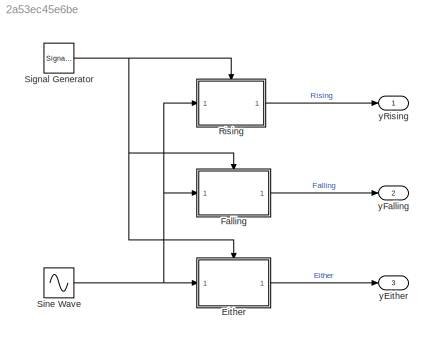
MODEL slx_2a53ec45e6be
KIND model
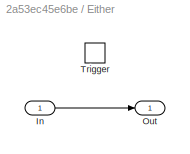
BLOCK [SubSystem] Either
  FunctionWithSeparateData = off
  MaskHideContents = off
  MinAlgLoopOccurrences = off
  Opaque = off
  Ports = [1, 1, 0, 1]
  PropExecContextOutsideSubsystem = off
  RTWSystemCode = Auto
  RequestExecContextInheritance = off
BLOCK [Inport] Either/In
  IconDisplay = Port number
BLOCK [Outport] Either/Out
  IconDisplay = Port number
  InitialOutput = 0
BLOCK [TriggerPort] Either/Trigger
  Ports = []
  TriggerType = either
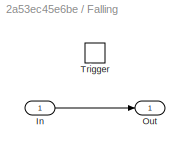
BLOCK [SubSystem] Falling
  FunctionWithSeparateData = off
  MaskHideContents = off
  MinAlgLoopOccurrences = off
  Opaque = off
  Ports = [1, 1, 0, 1]
  PropExecContextOutsideSubsystem = off
  RTWSystemCode = Auto
  RequestExecContextInheritance = off
BLOCK [Inport] Falling/In
  IconDisplay = Port number
BLOCK [Outport] Falling/Out
  IconDisplay = Port number
  InitialOutput = 0
BLOCK [TriggerPort] Falling/Trigger
  Ports = []
  TriggerType = falling
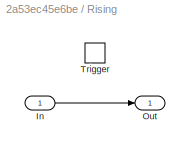
BLOCK [SubSystem] Rising
  FunctionWithSeparateData = off
  MaskHideContents = off
  MinAlgLoopOccurrences = off
  Opaque = off
  Ports = [1, 1, 0, 1]
  PropExecContextOutsideSubsystem = off
  RTWSystemCode = Auto
  RequestExecContextInheritance = off
BLOCK [Inport] Rising/In
  IconDisplay = Port number
BLOCK [Outport] Rising/Out
  IconDisplay = Port number
  InitialOutput = 0
BLOCK [TriggerPort] Rising/Trigger
  Ports = []
BLOCK [SignalGenerator] Signal Generator
  Amplitude = 0.5
  Ports = [0, 1]
  WaveForm = square
BLOCK [Sin] Sine Wave
  Frequency = 8
  Ports = [0, 1]
  SampleTime = 0
BLOCK [Outport] yEither
  IconDisplay = Port number
  Port = 3
BLOCK [Outport] yFalling
  IconDisplay = Port number
  Port = 2
BLOCK [Outport] yRising
  IconDisplay = Port number
LINE Either/In:1 -> Either/Out:1
LINE Either:1 -> yEither:1
LINE Falling/In:1 -> Falling/Out:1
LINE Falling:1 -> yFalling:1
LINE Rising/In:1 -> Rising/Out:1
LINE Rising:1 -> yRising:1
NET Signal Generator:1 -> Either:trigger, Falling:trigger, Rising:trigger
NET Sine Wave:1 -> Either:1, Falling:1, Rising:1
note: NET lines group one-source signal fan-out (src -> all destinations, sorted); 1:1 wires keep LINE
